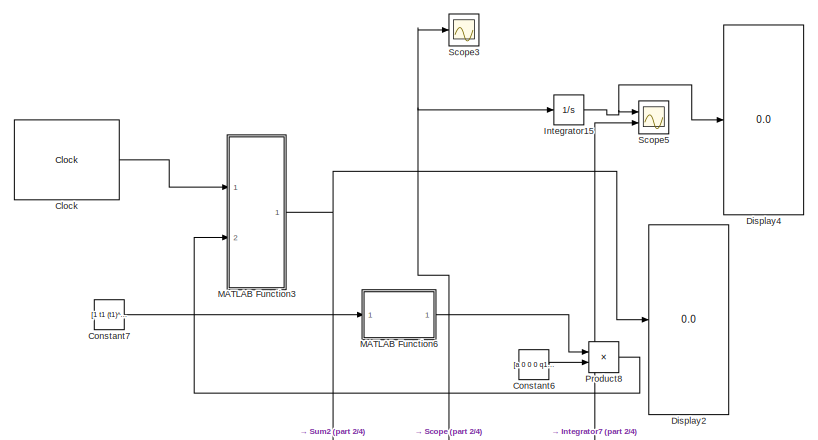
[diagram: root canvas - part 1/4, top right region]
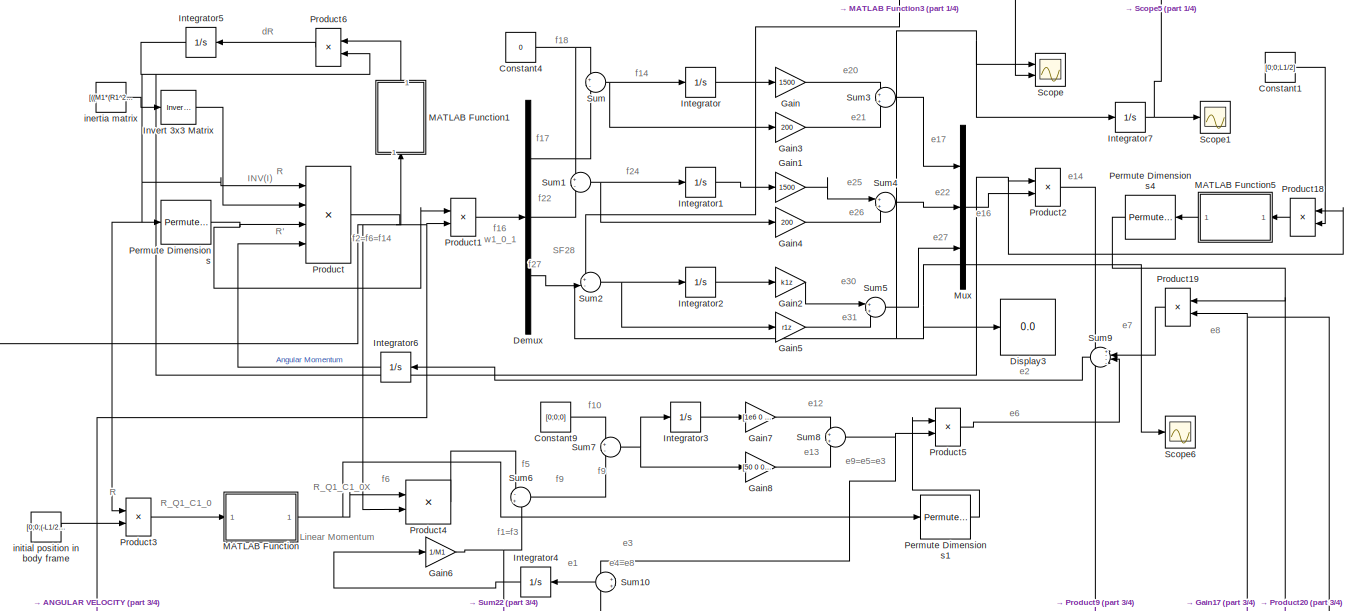
[diagram: root canvas - part 2/4, full width, top band]
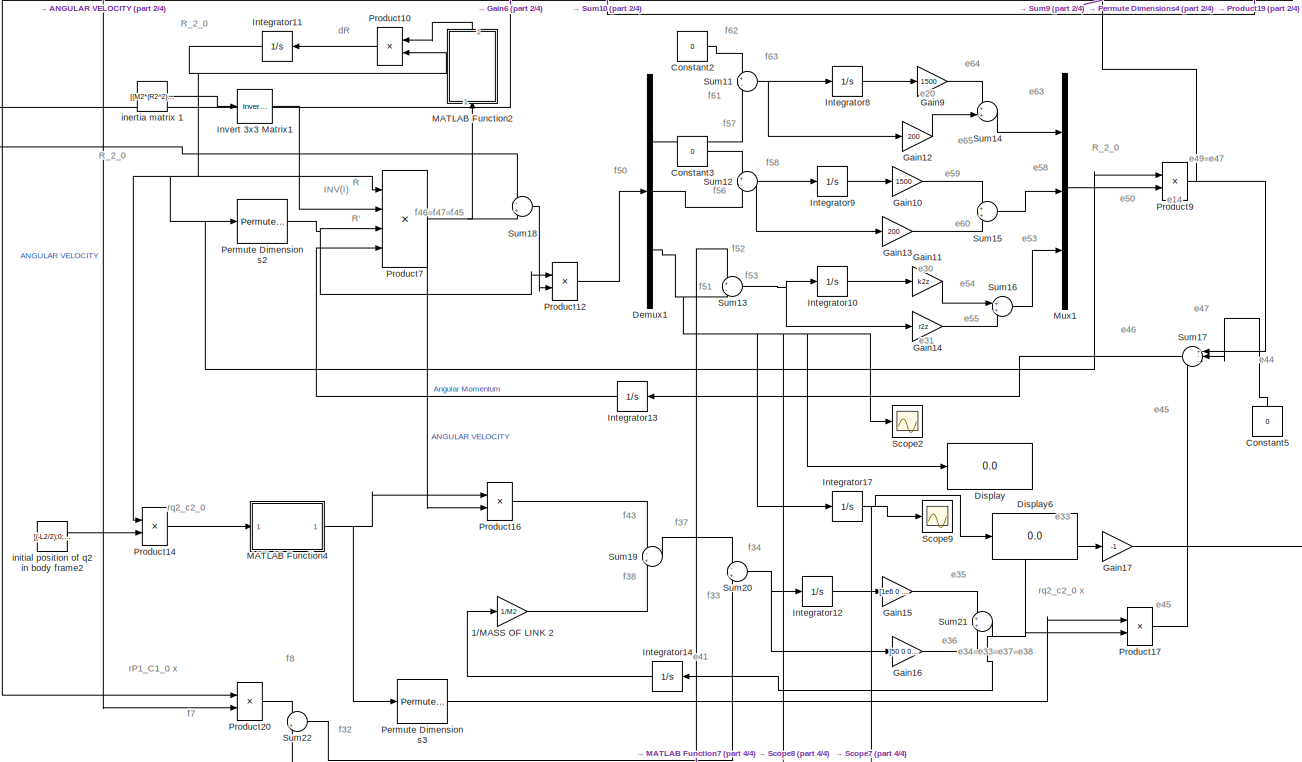
[diagram: root canvas - part 3/4, full width, middle band]
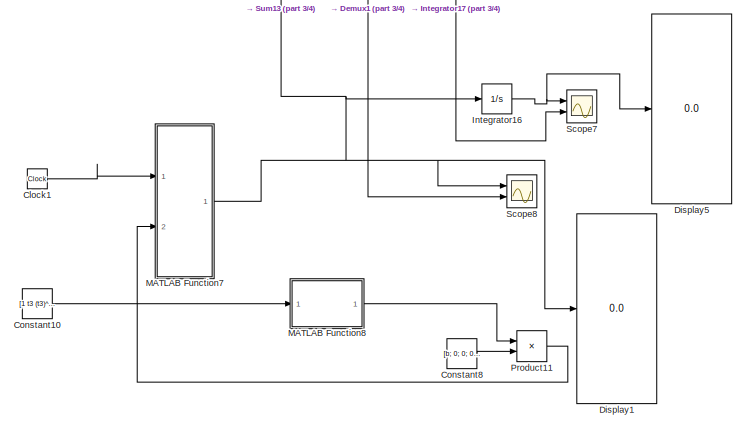
[diagram: root canvas - part 4/4, bottom center region]
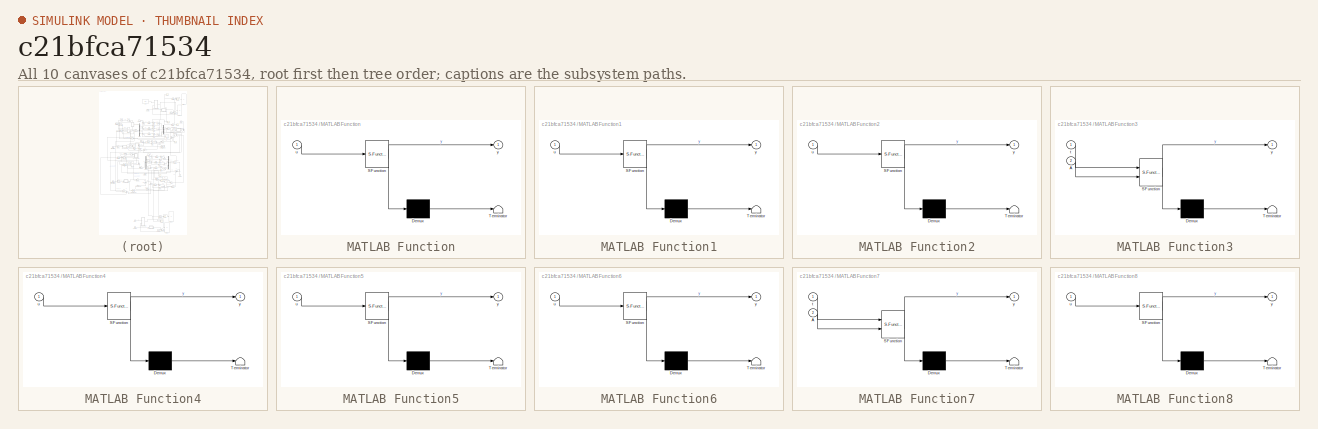
[diagram: thumbnail index - all 10 canvases of the model, root first then tree order]
MODEL slx_c21bfca71534
KIND model
CONFIG AbsTol = auto
CONFIG FixedStep = auto
CONFIG MaxStep = auto
CONFIG MinStep = auto
CONFIG RelTol = 1e-3
CONFIG SampleTimeConstraint = Unconstrained
CONFIG Solver = ode15s
CONFIG SolverMode = SingleTasking
CONFIG SolverName = ode15s
CONFIG StartTime = 0.0
CONFIG StopTime = 8
BLOCK [Gain] 1//MASS OF LINK 2
  Gain = 1/M2
  OutDataTypeStr = Inherit: Inherit via internal rule
  ParamDataTypeStr = Inherit: Inherit via internal rule
  SaturateOnIntegerOverflow = off
BLOCK [Clock] Clock
  Decimation = 2
  DisplayTime = on
BLOCK [Clock] Clock1
  DisplayTime = on
BLOCK [Constant] Constant1
  Value = [0;0;L1/2]
BLOCK [Constant] Constant10
  Value = [1 t3 (t3)^2 (t3)^3 (t3)^4 (t3)^5 (t3)^6 (t3)^7; 0 1 2*(t3) 3*((t3)^2) 4*((t3)^3) 5*((t3)^4) 6*((t3)^5) 7*((t3)^6); 0 0 2 6*(t3) 12*((t3)^2) 20*((t3)^3) 30*((t3)^4) 42*((t3)^5); 0 0 0 6 24*(t3) 60*((t3)^2) 120*((t3)^3) 210*((t3)^4); 1 t4 t4^2 t4^3 t4^4 t4^5 t4^6 t4^7; 0 1 2*t4 3*(t4^2) 4*(t4^3) 5*(t4^4) 6*(t4^5) 7*(t4^6);0 0 2 6*t4 12*(t4^2) 20*(t4^3) 30*(t4^4) 42*(t4^5);0 0 0 6 24*t4 60*(t4^2) 12...<+20ch>
BLOCK [Constant] Constant2
  Value = 0
BLOCK [Constant] Constant3
  Value = 0
BLOCK [Constant] Constant4
  Value = 0
BLOCK [Constant] Constant5
  Value = 0
BLOCK [Constant] Constant6
  Value = [a 0 0 0 q1f 0 0 0]
BLOCK [Constant] Constant7
  Value = [1 t1 (t1)^2 (t1)^3 (t1)^4 (t1)^5 (t1)^6 (t1)^7; 0 1 2*(t1) 3*((t1)^2) 4*((t1)^3) 5*((t1)^4) 6*((t1)^5) 7*((t1)^6); 0 0 2 6*(t1) 12*((t1)^2) 20*((t1)^3) 30*((t1)^4) 42*((t1)^5); 0 0 0 6 24*(t1) 60*((t1)^2) 120*((t1)^3) 210*((t1)^4); 1 t2 t2^2 t2^3 t2^4 t2^5 t2^6 t2^7; 0 1 2*t2 3*(t2^2) 4*(t2^3) 5*(t2^4) 6*(t2^5) 7*(t2^6);0 0 2 6*t2 12*(t2^2) 20*(t2^3) 30*(t2^4) 42*(t2^5);0 0 0 6 24*t2 60*(t2^2) 12...<+20ch>
BLOCK [Constant] Constant8
  Value = [b; 0; 0; 0;qf2 ; 0; 0; 0]
BLOCK [Constant] Constant9
  Value = [0;0;0]
  VectorParams1D = off
BLOCK [Demux] Demux
  DisplayOption = bar
  Outputs = 3
  Ports = [1, 3]
BLOCK [Demux] Demux1
  DisplayOption = bar
  Outputs = 3
  Ports = [1, 3]
BLOCK [Display] Display
  Decimation = 1
  Ports = [1]
BLOCK [Display] Display1
  Decimation = 2
  Ports = [1]
BLOCK [Display] Display2
  Decimation = 1
  Ports = [1]
BLOCK [Display] Display3
  Decimation = 1
  Ports = [1]
BLOCK [Display] Display4
  Decimation = 1
  Ports = [1]
BLOCK [Display] Display5
  Decimation = 1
  Ports = [1]
BLOCK [Display] Display6
  Decimation = 1
  Ports = [1]
BLOCK [Gain] Gain
  Gain = 1500
  OutDataTypeStr = Inherit: Inherit via internal rule
  ParamDataTypeStr = Inherit: Inherit via internal rule
  SaturateOnIntegerOverflow = off
BLOCK [Gain] Gain1
  Gain = 1500
  OutDataTypeStr = Inherit: Inherit via internal rule
  ParamDataTypeStr = Inherit: Inherit via internal rule
  SaturateOnIntegerOverflow = off
BLOCK [Gain] Gain10
  Gain = 1500
  OutDataTypeStr = Inherit: Inherit via internal rule
  ParamDataTypeStr = Inherit: Inherit via internal rule
  SaturateOnIntegerOverflow = off
BLOCK [Gain] Gain11
  Gain = k2z
  OutDataTypeStr = Inherit: Inherit via internal rule
  ParamDataTypeStr = Inherit: Inherit via internal rule
  SaturateOnIntegerOverflow = off
BLOCK [Gain] Gain12
  Gain = 200
  OutDataTypeStr = Inherit: Inherit via internal rule
  ParamDataTypeStr = Inherit: Inherit via internal rule
  SaturateOnIntegerOverflow = off
BLOCK [Gain] Gain13
  Gain = 200
  OutDataTypeStr = Inherit: Inherit via internal rule
  ParamDataTypeStr = Inherit: Inherit via internal rule
  SaturateOnIntegerOverflow = off
BLOCK [Gain] Gain14
  Gain = r2z
  OutDataTypeStr = Inherit: Inherit via internal rule
  ParamDataTypeStr = Inherit: Inherit via internal rule
  SaturateOnIntegerOverflow = off
BLOCK [Gain] Gain15
  Gain = [1e6 0 0;0 1e6 0;0 0 1e6]
  Multiplication = Matrix(K*u)
  OutDataTypeStr = Inherit: Inherit via internal rule
  ParamDataTypeStr = Inherit: Inherit via internal rule
  SaturateOnIntegerOverflow = off
BLOCK [Gain] Gain16
  Gain = [50 0 0;0 50 0;0 0 50]
  Multiplication = Matrix(K*u)
  OutDataTypeStr = Inherit: Inherit via internal rule
  ParamDataTypeStr = Inherit: Inherit via internal rule
  SaturateOnIntegerOverflow = off
BLOCK [Gain] Gain17
  Gain = -1
  OutDataTypeStr = Inherit: Inherit via internal rule
  ParamDataTypeStr = Inherit: Inherit via internal rule
  SaturateOnIntegerOverflow = off
BLOCK [Gain] Gain2
  Gain = k1z
  OutDataTypeStr = Inherit: Inherit via internal rule
  ParamDataTypeStr = Inherit: Inherit via internal rule
  SaturateOnIntegerOverflow = off
BLOCK [Gain] Gain3
  Gain = 200
  OutDataTypeStr = Inherit: Inherit via internal rule
  ParamDataTypeStr = Inherit: Inherit via internal rule
  SaturateOnIntegerOverflow = off
BLOCK [Gain] Gain4
  Gain = 200
  OutDataTypeStr = Inherit: Inherit via internal rule
  ParamDataTypeStr = Inherit: Inherit via internal rule
  SaturateOnIntegerOverflow = off
BLOCK [Gain] Gain5
  Gain = r1z
  OutDataTypeStr = Inherit: Inherit via internal rule
  ParamDataTypeStr = Inherit: Inherit via internal rule
  SaturateOnIntegerOverflow = off
BLOCK [Gain] Gain6
  Gain = 1/M1
  OutDataTypeStr = Inherit: Inherit via internal rule
  ParamDataTypeStr = Inherit: Inherit via internal rule
  SaturateOnIntegerOverflow = off
BLOCK [Gain] Gain7
  Gain = [1e6 0 0;0 1e6 0;0 0 1e6]
  Multiplication = Matrix(K*u)
  OutDataTypeStr = Inherit: Inherit via internal rule
  ParamDataTypeStr = Inherit: Inherit via internal rule
  SaturateOnIntegerOverflow = off
BLOCK [Gain] Gain8
  Gain = [50 0 0;0 50 0;0 0 50]
  Multiplication = Matrix(K*u)
  OutDataTypeStr = Inherit: Inherit via internal rule
  ParamDataTypeStr = Inherit: Inherit via internal rule
  SaturateOnIntegerOverflow = off
BLOCK [Gain] Gain9
  Gain = 1500
  OutDataTypeStr = Inherit: Inherit via internal rule
  ParamDataTypeStr = Inherit: Inherit via internal rule
  SaturateOnIntegerOverflow = off
BLOCK [Integrator] Integrator
  Ports = [1, 1]
BLOCK [Integrator] Integrator1
  Ports = [1, 1]
BLOCK [Integrator] Integrator10
  Ports = [1, 1]
BLOCK [Integrator] Integrator11
  InitialCondition = [cos(a) -sin(a) 0;sin(a) cos(a) 0;0 0 1]*[cos(b) -sin(b) 0;0 0 -1;sin(b) cos(b) 0]
  Ports = [1, 1]
BLOCK [Integrator] Integrator12
  Ports = [1, 1]
BLOCK [Integrator] Integrator13
  InitialCondition = [0;0;0]
  Ports = [1, 1]
BLOCK [Integrator] Integrator14
  InitialCondition = [0;0;0]
  Ports = [1, 1]
BLOCK [Integrator] Integrator15
  Ports = [1, 1]
BLOCK [Integrator] Integrator16
  InitialCondition = -0.3490
  Ports = [1, 1]
BLOCK [Integrator] Integrator17
  InitialCondition = -0.3490
  Ports = [1, 1]
BLOCK [Integrator] Integrator2
  Ports = [1, 1]
BLOCK [Integrator] Integrator3
  Ports = [1, 1]
BLOCK [Integrator] Integrator4
  InitialCondition = [0;0;0]
  Ports = [1, 1]
BLOCK [Integrator] Integrator5
  InitialCondition = [cos(a) -sin(a) 0;sin(a) cos(a) 0;0 0 1]
  Ports = [1, 1]
BLOCK [Integrator] Integrator6
  InitialCondition = [0;0;0]
  Ports = [1, 1]
BLOCK [Integrator] Integrator7
  Ports = [1, 1]
BLOCK [Integrator] Integrator8
  Ports = [1, 1]
BLOCK [Integrator] Integrator9
  Ports = [1, 1]
BLOCK [Reference] Invert 3x3 Matrix  REF=aerolibutil/Invert 
3x3 Matrix
  Ports = [1, 1]
  SourceBlock = aerolibutil/Invert \n3x3 Matrix
  SourceType = Invert 3x3 Matrix
BLOCK [Reference] Invert 3x3 Matrix1  REF=aerolibutil/Invert 
3x3 Matrix
  Ports = [1, 1]
  SourceBlock = aerolibutil/Invert \n3x3 Matrix
  SourceType = Invert 3x3 Matrix
BLOCK [SubSystem] MATLAB Function
  ErrorFcn = Stateflow.Translate.translate
  PermitHierarchicalResolution = ExplicitOnly
  Ports = [1, 1]
  RequestExecContextInheritance = off
  SFBlockType = MATLAB Function
  TreatAsAtomicUnit = on
BLOCK [Demux] MATLAB Function/ Demux 
  Outputs = 1
  Ports = [1, 1]
BLOCK [S-Function] MATLAB Function/ SFunction 
  EnableBusSupport = on
  FunctionName = sf_sfun
  PortCounts = [1 2]
  Ports = [1, 2]
  Tag = Stateflow S-Function modelnew 2
BLOCK [Terminator] MATLAB Function/ Terminator 
BLOCK [Inport] MATLAB Function/u
  IconDisplay = Port number
BLOCK [Outport] MATLAB Function/y
  IconDisplay = Port number
BLOCK [SubSystem] MATLAB Function1
  ErrorFcn = Stateflow.Translate.translate
  PermitHierarchicalResolution = ExplicitOnly
  Ports = [1, 1]
  RequestExecContextInheritance = off
  SFBlockType = MATLAB Function
  TreatAsAtomicUnit = on
BLOCK [Demux] MATLAB Function1/ Demux 
  Outputs = 1
  Ports = [1, 1]
BLOCK [S-Function] MATLAB Function1/ SFunction 
  EnableBusSupport = on
  FunctionName = sf_sfun
  PortCounts = [1 2]
  Ports = [1, 2]
  Tag = Stateflow S-Function modelnew 1
BLOCK [Terminator] MATLAB Function1/ Terminator 
BLOCK [Inport] MATLAB Function1/u
  IconDisplay = Port number
BLOCK [Outport] MATLAB Function1/y
  IconDisplay = Port number
BLOCK [SubSystem] MATLAB Function2
  ErrorFcn = Stateflow.Translate.translate
  PermitHierarchicalResolution = ExplicitOnly
  Ports = [1, 1]
  RequestExecContextInheritance = off
  SFBlockType = MATLAB Function
  TreatAsAtomicUnit = on
BLOCK [Demux] MATLAB Function2/ Demux 
  Outputs = 1
  Ports = [1, 1]
BLOCK [S-Function] MATLAB Function2/ SFunction 
  EnableBusSupport = on
  FunctionName = sf_sfun
  PortCounts = [1 2]
  Ports = [1, 2]
  Tag = Stateflow S-Function modelnew 3
BLOCK [Terminator] MATLAB Function2/ Terminator 
BLOCK [Inport] MATLAB Function2/u
  IconDisplay = Port number
BLOCK [Outport] MATLAB Function2/y
  IconDisplay = Port number
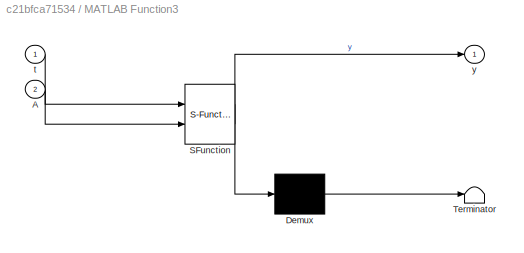
BLOCK [SubSystem] MATLAB Function3
  ErrorFcn = Stateflow.Translate.translate
  PermitHierarchicalResolution = ExplicitOnly
  Ports = [2, 1]
  RequestExecContextInheritance = off
  SFBlockType = MATLAB Function
  TreatAsAtomicUnit = on
BLOCK [Demux] MATLAB Function3/ Demux 
  Outputs = 1
  Ports = [1, 1]
BLOCK [S-Function] MATLAB Function3/ SFunction 
  EnableBusSupport = on
  FunctionName = sf_sfun
  PortCounts = [2 2]
  Ports = [2, 2]
  Tag = Stateflow S-Function modelnew 4
BLOCK [Terminator] MATLAB Function3/ Terminator 
BLOCK [Inport] MATLAB Function3/A
  IconDisplay = Port number
  Port = 2
BLOCK [Inport] MATLAB Function3/t
  IconDisplay = Port number
BLOCK [Outport] MATLAB Function3/y
  IconDisplay = Port number
BLOCK [SubSystem] MATLAB Function4
  ErrorFcn = Stateflow.Translate.translate
  PermitHierarchicalResolution = ExplicitOnly
  Ports = [1, 1]
  RequestExecContextInheritance = off
  SFBlockType = MATLAB Function
  TreatAsAtomicUnit = on
BLOCK [Demux] MATLAB Function4/ Demux 
  Outputs = 1
  Ports = [1, 1]
BLOCK [S-Function] MATLAB Function4/ SFunction 
  EnableBusSupport = on
  FunctionName = sf_sfun
  PortCounts = [1 2]
  Ports = [1, 2]
  Tag = Stateflow S-Function modelnew 5
BLOCK [Terminator] MATLAB Function4/ Terminator 
BLOCK [Inport] MATLAB Function4/u
  IconDisplay = Port number
BLOCK [Outport] MATLAB Function4/y
  IconDisplay = Port number
BLOCK [SubSystem] MATLAB Function5
  ErrorFcn = Stateflow.Translate.translate
  PermitHierarchicalResolution = ExplicitOnly
  Ports = [1, 1]
  RequestExecContextInheritance = off
  SFBlockType = MATLAB Function
  TreatAsAtomicUnit = on
BLOCK [Demux] MATLAB Function5/ Demux 
  Outputs = 1
  Ports = [1, 1]
BLOCK [S-Function] MATLAB Function5/ SFunction 
  EnableBusSupport = on
  FunctionName = sf_sfun
  PortCounts = [1 2]
  Ports = [1, 2]
  Tag = Stateflow S-Function modelnew 6
BLOCK [Terminator] MATLAB Function5/ Terminator 
BLOCK [Inport] MATLAB Function5/u
  IconDisplay = Port number
BLOCK [Outport] MATLAB Function5/y
  IconDisplay = Port number
BLOCK [SubSystem] MATLAB Function6
  ErrorFcn = Stateflow.Translate.translate
  PermitHierarchicalResolution = ExplicitOnly
  Ports = [1, 1]
  RequestExecContextInheritance = off
  SFBlockType = MATLAB Function
  TreatAsAtomicUnit = on
BLOCK [Demux] MATLAB Function6/ Demux 
  Outputs = 1
  Ports = [1, 1]
BLOCK [S-Function] MATLAB Function6/ SFunction 
  EnableBusSupport = on
  FunctionName = sf_sfun
  PortCounts = [1 2]
  Ports = [1, 2]
  Tag = Stateflow S-Function modelnew 7
BLOCK [Terminator] MATLAB Function6/ Terminator 
BLOCK [Inport] MATLAB Function6/u
  IconDisplay = Port number
BLOCK [Outport] MATLAB Function6/y
  IconDisplay = Port number
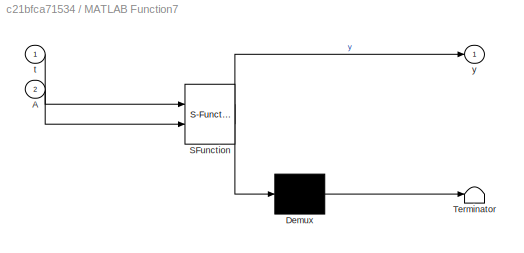
BLOCK [SubSystem] MATLAB Function7
  ErrorFcn = Stateflow.Translate.translate
  PermitHierarchicalResolution = ExplicitOnly
  Ports = [2, 1]
  RequestExecContextInheritance = off
  SFBlockType = MATLAB Function
  TreatAsAtomicUnit = on
BLOCK [Demux] MATLAB Function7/ Demux 
  Outputs = 1
  Ports = [1, 1]
BLOCK [S-Function] MATLAB Function7/ SFunction 
  EnableBusSupport = on
  FunctionName = sf_sfun
  PortCounts = [2 2]
  Ports = [2, 2]
  Tag = Stateflow S-Function modelnew 8
BLOCK [Terminator] MATLAB Function7/ Terminator 
BLOCK [Inport] MATLAB Function7/A
  IconDisplay = Port number
  Port = 2
BLOCK [Inport] MATLAB Function7/t
  IconDisplay = Port number
BLOCK [Outport] MATLAB Function7/y
  IconDisplay = Port number
BLOCK [SubSystem] MATLAB Function8
  ErrorFcn = Stateflow.Translate.translate
  PermitHierarchicalResolution = ExplicitOnly
  Ports = [1, 1]
  RequestExecContextInheritance = off
  SFBlockType = MATLAB Function
  TreatAsAtomicUnit = on
BLOCK [Demux] MATLAB Function8/ Demux 
  Outputs = 1
  Ports = [1, 1]
BLOCK [S-Function] MATLAB Function8/ SFunction 
  EnableBusSupport = on
  FunctionName = sf_sfun
  PortCounts = [1 2]
  Ports = [1, 2]
  Tag = Stateflow S-Function modelnew 9
BLOCK [Terminator] MATLAB Function8/ Terminator 
BLOCK [Inport] MATLAB Function8/u
  IconDisplay = Port number
BLOCK [Outport] MATLAB Function8/y
  IconDisplay = Port number
BLOCK [Mux] Mux
  DisplayOption = bar
  Inputs = 3
  Ports = [3, 1]
BLOCK [Mux] Mux1
  DisplayOption = bar
  Inputs = 3
  Ports = [3, 1]
BLOCK [PermuteDimensions] Permute Dimensions
BLOCK [PermuteDimensions] Permute Dimensions1
BLOCK [PermuteDimensions] Permute Dimensions2
BLOCK [PermuteDimensions] Permute Dimensions3
BLOCK [PermuteDimensions] Permute Dimensions4
BLOCK [Product] Product
  InputSameDT = off
  Inputs = 4
  Multiplication = Matrix(*)
  OutDataTypeStr = Inherit: Inherit via internal rule
  Ports = [4, 1]
  RndMeth = Floor
  SaturateOnIntegerOverflow = off
BLOCK [Product] Product1
  InputSameDT = off
  Multiplication = Matrix(*)
  OutDataTypeStr = Inherit: Inherit via internal rule
  Ports = [2, 1]
  RndMeth = Floor
  SaturateOnIntegerOverflow = off
BLOCK [Product] Product10
  InputSameDT = off
  Multiplication = Matrix(*)
  OutDataTypeStr = Inherit: Inherit via internal rule
  Ports = [2, 1]
  RndMeth = Floor
  SaturateOnIntegerOverflow = off
BLOCK [Product] Product11
  InputSameDT = off
  Multiplication = Matrix(*)
  OutDataTypeStr = Inherit: Inherit via internal rule
  Ports = [2, 1]
  RndMeth = Floor
  SaturateOnIntegerOverflow = off
BLOCK [Product] Product12
  InputSameDT = off
  Multiplication = Matrix(*)
  OutDataTypeStr = Inherit: Inherit via internal rule
  Ports = [2, 1]
  RndMeth = Floor
  SaturateOnIntegerOverflow = off
BLOCK [Product] Product14
  InputSameDT = off
  Multiplication = Matrix(*)
  OutDataTypeStr = Inherit: Inherit via internal rule
  Ports = [2, 1]
  RndMeth = Floor
  SaturateOnIntegerOverflow = off
BLOCK [Product] Product16
  InputSameDT = off
  Multiplication = Matrix(*)
  OutDataTypeStr = Inherit: Inherit via internal rule
  Ports = [2, 1]
  RndMeth = Floor
  SaturateOnIntegerOverflow = off
BLOCK [Product] Product17
  InputSameDT = off
  Multiplication = Matrix(*)
  OutDataTypeStr = Inherit: Inherit via internal rule
  Ports = [2, 1]
  RndMeth = Floor
  SaturateOnIntegerOverflow = off
BLOCK [Product] Product18
  InputSameDT = off
  Multiplication = Matrix(*)
  OutDataTypeStr = Inherit: Inherit via internal rule
  Ports = [2, 1]
  RndMeth = Floor
  SaturateOnIntegerOverflow = off
BLOCK [Product] Product19
  InputSameDT = off
  Multiplication = Matrix(*)
  OutDataTypeStr = Inherit: Inherit via internal rule
  Ports = [2, 1]
  RndMeth = Floor
  SaturateOnIntegerOverflow = off
BLOCK [Product] Product2
  InputSameDT = off
  Multiplication = Matrix(*)
  OutDataTypeStr = Inherit: Inherit via internal rule
  Ports = [2, 1]
  RndMeth = Floor
  SaturateOnIntegerOverflow = off
BLOCK [Product] Product20
  InputSameDT = off
  Multiplication = Matrix(*)
  OutDataTypeStr = Inherit: Inherit via internal rule
  Ports = [2, 1]
  RndMeth = Floor
  SaturateOnIntegerOverflow = off
BLOCK [Product] Product3
  InputSameDT = off
  Multiplication = Matrix(*)
  OutDataTypeStr = Inherit: Inherit via internal rule
  Ports = [2, 1]
  RndMeth = Floor
  SaturateOnIntegerOverflow = off
BLOCK [Product] Product4
  InputSameDT = off
  Multiplication = Matrix(*)
  OutDataTypeStr = Inherit: Inherit via internal rule
  Ports = [2, 1]
  RndMeth = Floor
  SaturateOnIntegerOverflow = off
BLOCK [Product] Product5
  InputSameDT = off
  Multiplication = Matrix(*)
  OutDataTypeStr = Inherit: Inherit via internal rule
  Ports = [2, 1]
  RndMeth = Floor
  SaturateOnIntegerOverflow = off
BLOCK [Product] Product6
  InputSameDT = off
  Multiplication = Matrix(*)
  OutDataTypeStr = Inherit: Inherit via internal rule
  Ports = [2, 1]
  RndMeth = Floor
  SaturateOnIntegerOverflow = off
BLOCK [Product] Product7
  InputSameDT = off
  Inputs = 4
  Multiplication = Matrix(*)
  OutDataTypeStr = Inherit: Inherit via internal rule
  Ports = [4, 1]
  RndMeth = Floor
  SaturateOnIntegerOverflow = off
BLOCK [Product] Product8
  InputSameDT = off
  Multiplication = Matrix(*)
  OutDataTypeStr = Inherit: Inherit via internal rule
  Ports = [2, 1]
  RndMeth = Floor
  SaturateOnIntegerOverflow = off
BLOCK [Product] Product9
  InputSameDT = off
  Multiplication = Matrix(*)
  OutDataTypeStr = Inherit: Inherit via internal rule
  Ports = [2, 1]
  RndMeth = Floor
  SaturateOnIntegerOverflow = off
BLOCK [Scope] Scope
  Floating = off
  NumInputPorts = 2
  Ports = [2]
  SaveName = ScopeData2
  YMax = 225~5
  YMin = -125~-5
BLOCK [Scope] Scope1
  Floating = off
  NumInputPorts = 1
  Ports = [1]
  SaveName = ScopeData1
  YMax = 0.226
  YMin = 0.205
BLOCK [Scope] Scope2
  Floating = off
  NumInputPorts = 1
  Ports = [1]
  SaveName = ScopeData3
  YMax = 80
  YMin = -90
BLOCK [Scope] Scope3
  Floating = off
  NumInputPorts = 1
  Ports = [1]
  YMax = 0.1675
  YMin = 0.162
BLOCK [Scope] Scope5
  Floating = off
  NumInputPorts = 2
  Ports = [2]
  SaveName = ScopeData5
  TimeRange = 5
  YMax = 5~5
  YMin = -5~-5
BLOCK [Scope] Scope6
  Floating = off
  NumInputPorts = 1
  Ports = [1]
  SaveName = ScopeData6
  TimeRange = 0.3076710970924061
  YMax = -700
  YMin = -950
BLOCK [Scope] Scope7
  Floating = off
  NumInputPorts = 2
  Ports = [2]
  SaveName = ScopeData7
  YMax = 5~5
  YMin = -5~-5
BLOCK [Scope] Scope8
  Floating = off
  NumInputPorts = 2
  Ports = [2]
  SaveName = ScopeData8
  YMax = 5~5
  YMin = -5~-5
BLOCK [Scope] Scope9
  Floating = off
  NumInputPorts = 1
  Ports = [1]
  SaveName = ScopeData9
  YMax = 80
  YMin = -90
BLOCK [Sum] Sum
  IconShape = round
  InputSameDT = off
  Inputs = +-
  OutDataTypeStr = Inherit: Inherit via internal rule
  Ports = [2, 1]
  SaturateOnIntegerOverflow = off
BLOCK [Sum] Sum1
  IconShape = round
  InputSameDT = off
  Inputs = +-
  OutDataTypeStr = Inherit: Inherit via internal rule
  Ports = [2, 1]
  SaturateOnIntegerOverflow = off
BLOCK [Sum] Sum10
  IconShape = round
  InputSameDT = off
  OutDataTypeStr = Inherit: Inherit via internal rule
  Ports = [2, 1]
  SaturateOnIntegerOverflow = off
BLOCK [Sum] Sum11
  IconShape = round
  InputSameDT = off
  Inputs = +-
  OutDataTypeStr = Inherit: Inherit via internal rule
  Ports = [2, 1]
  SaturateOnIntegerOverflow = off
BLOCK [Sum] Sum12
  IconShape = round
  InputSameDT = off
  Inputs = +-
  OutDataTypeStr = Inherit: Inherit via internal rule
  Ports = [2, 1]
  SaturateOnIntegerOverflow = off
BLOCK [Sum] Sum13
  IconShape = round
  InputSameDT = off
  Inputs = +-
  OutDataTypeStr = Inherit: Inherit via internal rule
  Ports = [2, 1]
  SaturateOnIntegerOverflow = off
BLOCK [Sum] Sum14
  IconShape = round
  InputSameDT = off
  OutDataTypeStr = Inherit: Inherit via internal rule
  Ports = [2, 1]
  SaturateOnIntegerOverflow = off
BLOCK [Sum] Sum15
  IconShape = round
  InputSameDT = off
  OutDataTypeStr = Inherit: Inherit via internal rule
  Ports = [2, 1]
  SaturateOnIntegerOverflow = off
BLOCK [Sum] Sum16
  IconShape = round
  InputSameDT = off
  OutDataTypeStr = Inherit: Inherit via internal rule
  Ports = [2, 1]
  SaturateOnIntegerOverflow = off
BLOCK [Sum] Sum17
  IconShape = round
  InputSameDT = off
  Inputs = +--
  OutDataTypeStr = Inherit: Inherit via internal rule
  Ports = [3, 1]
  SaturateOnIntegerOverflow = off
BLOCK [Sum] Sum18
  IconShape = round
  InputSameDT = off
  Inputs = -+
  OutDataTypeStr = Inherit: Inherit via internal rule
  Ports = [2, 1]
  SaturateOnIntegerOverflow = off
BLOCK [Sum] Sum19
  IconShape = round
  InputSameDT = off
  Inputs = -+
  OutDataTypeStr = Inherit: Inherit via internal rule
  Ports = [2, 1]
  SaturateOnIntegerOverflow = off
BLOCK [Sum] Sum2
  IconShape = round
  InputSameDT = off
  Inputs = +-
  OutDataTypeStr = Inherit: Inherit via internal rule
  Ports = [2, 1]
  SaturateOnIntegerOverflow = off
BLOCK [Sum] Sum20
  IconShape = round
  InputSameDT = off
  Inputs = -+
  OutDataTypeStr = Inherit: Inherit via internal rule
  Ports = [2, 1]
  SaturateOnIntegerOverflow = off
BLOCK [Sum] Sum21
  IconShape = round
  InputSameDT = off
  OutDataTypeStr = Inherit: Inherit via internal rule
  Ports = [2, 1]
  SaturateOnIntegerOverflow = off
BLOCK [Sum] Sum22
  IconShape = round
  InputSameDT = off
  Inputs = -+
  OutDataTypeStr = Inherit: Inherit via internal rule
  Ports = [2, 1]
  SaturateOnIntegerOverflow = off
BLOCK [Sum] Sum3
  IconShape = round
  InputSameDT = off
  OutDataTypeStr = Inherit: Inherit via internal rule
  Ports = [2, 1]
  SaturateOnIntegerOverflow = off
BLOCK [Sum] Sum4
  IconShape = round
  InputSameDT = off
  OutDataTypeStr = Inherit: Inherit via internal rule
  Ports = [2, 1]
  SaturateOnIntegerOverflow = off
BLOCK [Sum] Sum5
  IconShape = round
  InputSameDT = off
  OutDataTypeStr = Inherit: Inherit via internal rule
  Ports = [2, 1]
  SaturateOnIntegerOverflow = off
BLOCK [Sum] Sum6
  IconShape = round
  InputSameDT = off
  Inputs = -+
  OutDataTypeStr = Inherit: Inherit via internal rule
  Ports = [2, 1]
  SaturateOnIntegerOverflow = off
BLOCK [Sum] Sum7
  IconShape = round
  InputSameDT = off
  Inputs = +-
  OutDataTypeStr = Inherit: Inherit via internal rule
  Ports = [2, 1]
  SaturateOnIntegerOverflow = off
BLOCK [Sum] Sum8
  IconShape = round
  InputSameDT = off
  OutDataTypeStr = Inherit: Inherit via internal rule
  Ports = [2, 1]
  SaturateOnIntegerOverflow = off
BLOCK [Sum] Sum9
  IconShape = round
  InputSameDT = off
  Inputs = +---
  OutDataTypeStr = Inherit: Inherit via internal rule
  Ports = [4, 1]
  SaturateOnIntegerOverflow = off
BLOCK [Constant] inertia matrix 
  Value = [((M1*(R1^2))/2)+((M1*(L1^2))/12) 0 0;0 ((M1*(R1^2))/2)+((M1*(L1^2))/12) 0;0 0 ((M1*(R1^2))/2)]
  VectorParams1D = off
BLOCK [Constant] inertia matrix 1
  Value = [(M2*(R2^2))/2 0 0;0 ((M2*(R2^2))/2)+((M2*(L2^2))/12) 0;0 0 ((M2*(R2^2))/2)+((M2*(L2^2))/12)]
  VectorParams1D = off
BLOCK [Constant] initial position in body frame
  Value = [0;0;(-L1/2)]
BLOCK [Constant] initial position of q2 in body frame2
  Value = [(-L2/2);0;0]
ANNOTATION (root): e33
ANNOTATION (root): e34=e33=e37=e38
ANNOTATION (root): e3
ANNOTATION (root): e41
ANNOTATION (root): e45
ANNOTATION (root): e46
ANNOTATION (root): e47
ANNOTATION (root): e49=e47
ANNOTATION (root): e4=e8
ANNOTATION (root): e50
ANNOTATION (root): e53
ANNOTATION (root): e58
ANNOTATION (root): e63
ANNOTATION (root): f37
ANNOTATION (root): f43
ANNOTATION (root): f50
ANNOTATION (root): f51
ANNOTATION (root): f52
ANNOTATION (root): f53
ANNOTATION (root): f56
ANNOTATION (root): f57
ANNOTATION (root): f58
ANNOTATION (root): f61
ANNOTATION (root): f62
ANNOTATION (root): f63
ANNOTATION (root): rq2_c2_0 x
ANNOTATION (root): e1
ANNOTATION (root): e35
ANNOTATION (root): e36
ANNOTATION (root): e44
ANNOTATION (root): e7
ANNOTATION (root): f32
ANNOTATION (root): f33
ANNOTATION (root): f34
ANNOTATION (root): f38
ANNOTATION (root): f7
ANNOTATION (root): f8
ANNOTATION (root): rP1_C1_0 x
ANNOTATION (root): R_2_0
ANNOTATION (root): e54
ANNOTATION (root): e55
ANNOTATION (root): e59
ANNOTATION (root): e60
ANNOTATION (root): e64
ANNOTATION (root): e65
ANNOTATION (root): e8
ANNOTATION (root): f46=f47=f45
ANNOTATION (root): f6
ANNOTATION (root): rq2_c2_0
ANNOTATION (root): INV(I)
ANNOTATION (root): Linear Momentum
ANNOTATION (root): R
ANNOTATION (root): R'
ANNOTATION (root): R_Q1_C1_0
ANNOTATION (root): R_Q1_C1_0X
ANNOTATION (root): SF28
ANNOTATION (root): dR
ANNOTATION (root): e12
ANNOTATION (root): e13
ANNOTATION (root): e14
ANNOTATION (root): e16
ANNOTATION (root): e17
ANNOTATION (root): e2
ANNOTATION (root): e20
ANNOTATION (root): e21
ANNOTATION (root): e22
ANNOTATION (root): e25
ANNOTATION (root): e26
ANNOTATION (root): e27
ANNOTATION (root): e30
ANNOTATION (root): e31
ANNOTATION (root): e6
ANNOTATION (root): e9=e5=e3
ANNOTATION (root): f10
ANNOTATION (root): f14
ANNOTATION (root): f16 w1_0_1
ANNOTATION (root): f17
ANNOTATION (root): f18
ANNOTATION (root): f1=f3
ANNOTATION (root): f22
ANNOTATION (root): f24
ANNOTATION (root): f27
ANNOTATION (root): f2=f6=f14
ANNOTATION (root): f5
ANNOTATION (root): f9
LINE 1//MASS OF LINK 2:1 -> Sum19:2
LINE Clock1:1 -> MATLAB Function7:1
LINE Clock:1 -> MATLAB Function3:1
LINE Constant10:1 -> MATLAB Function8:1
LINE Constant1:1 -> Product18:2
LINE Constant2:1 -> Sum11:1
LINE Constant3:1 -> Sum12:1
NET Constant4:1 -> Sum1:1, Sum:1
LINE Constant5:1 -> Sum17:2
LINE Constant6:1 -> Product8:2
LINE Constant7:1 -> MATLAB Function6:1
LINE Constant8:1 -> Product11:2
LINE Constant9:1 -> Sum7:1
LINE Demux1:1 -> Sum11:2
LINE Demux1:2 -> Sum12:2
NET Demux1:3 -> Display:1, Integrator17:1, Scope2:1, Scope8:2, Sum13:2
LINE Demux:1 -> Sum:2
LINE Demux:2 -> Sum1:2
NET Demux:3 -> Display3:1, Integrator7:1, Scope6:1, Scope:1, Sum2:2
LINE Gain10:1 -> Sum15:1
LINE Gain11:1 -> Sum16:1
LINE Gain12:1 -> Sum14:2
LINE Gain13:1 -> Sum15:2
LINE Gain14:1 -> Sum16:2
LINE Gain15:1 -> Sum21:1
LINE Gain16:1 -> Sum21:2
NET Gain17:1 -> Product19:2, Sum10:2
LINE Gain1:1 -> Sum4:1
LINE Gain2:1 -> Sum5:1
LINE Gain3:1 -> Sum3:2
LINE Gain4:1 -> Sum4:2
LINE Gain5:1 -> Sum5:2
NET Gain6:1 -> Sum22:2, Sum6:2
LINE Gain7:1 -> Sum8:1
LINE Gain8:1 -> Sum8:2
LINE Gain9:1 -> Sum14:1
LINE Gain:1 -> Sum3:1
LINE Integrator10:1 -> Gain11:1
NET Integrator11:1 -> Permute Dimensions2:1, Product10:2, Product14:1, Product7:1, Product9:1
LINE Integrator12:1 -> Gain15:1
LINE Integrator13:1 -> Product7:4
LINE Integrator14:1 -> 1//MASS OF LINK 2:1
NET Integrator15:1 -> Display4:1, Scope5:1
NET Integrator16:1 -> Display5:1, Scope7:1
NET Integrator17:1 -> Display6:1, Scope7:2, Scope9:1
LINE Integrator1:1 -> Gain1:1
LINE Integrator2:1 -> Gain2:1
LINE Integrator3:1 -> Gain7:1
LINE Integrator4:1 -> Gain6:1
NET Integrator5:1 -> Permute Dimensions:1, Product18:1, Product2:1, Product3:1, Product6:2, Product:1
LINE Integrator6:1 -> Product:4
NET Integrator7:1 -> Scope1:1, Scope5:2
LINE Integrator8:1 -> Gain9:1
LINE Integrator9:1 -> Gain10:1
LINE Integrator:1 -> Gain:1
LINE Invert 3x3 Matrix1:1 -> Product7:2
LINE Invert 3x3 Matrix:1 -> Product:2
LINE MATLAB Function1:1 -> Product6:1
LINE MATLAB Function2:1 -> Product10:1
NET MATLAB Function3:1 -> Display2:1, Integrator15:1, Scope3:1, Scope:2, Sum2:1
NET MATLAB Function4:1 -> Permute Dimensions3:1, Product16:1
LINE MATLAB Function5:1 -> Permute Dimensions4:1
LINE MATLAB Function6:1 -> Product8:1
NET MATLAB Function7:1 -> Display1:1, Integrator16:1, Scope8:1, Sum13:1
LINE MATLAB Function8:1 -> Product11:1
NET MATLAB Function:1 -> Permute Dimensions1:1, Product4:1
LINE Mux1:1 -> Product9:2
LINE Mux:1 -> Product2:2
LINE Permute Dimensions1:1 -> Product5:1
NET Permute Dimensions2:1 -> Product12:1, Product7:3
LINE Permute Dimensions3:1 -> Product17:1
NET Permute Dimensions4:1 -> Product19:1, Product20:1
NET Permute Dimensions:1 -> Product1:1, Product:3
LINE Product10:1 -> Integrator11:1
LINE Product11:1 -> MATLAB Function7:2
LINE Product12:1 -> Demux1:1
LINE Product14:1 -> MATLAB Function4:1
LINE Product16:1 -> Sum19:1
LINE Product17:1 -> Sum17:3
LINE Product18:1 -> MATLAB Function5:1
LINE Product19:1 -> Sum9:2
LINE Product1:1 -> Demux:1
LINE Product20:1 -> Sum22:1
LINE Product2:1 -> Sum9:1
LINE Product3:1 -> MATLAB Function:1
LINE Product4:1 -> Sum6:1
LINE Product5:1 -> Sum9:3
LINE Product6:1 -> Integrator5:1
NET Product7:1 -> MATLAB Function2:1, Product16:2, Sum18:2
LINE Product8:1 -> MATLAB Function3:2
NET Product9:1 -> Sum17:1, Sum9:4
NET Product:1 -> MATLAB Function1:1, Product1:2, Product20:2, Product4:2, Sum18:1
LINE Sum10:1 -> Integrator4:1
NET Sum11:1 -> Gain12:1, Integrator8:1
NET Sum12:1 -> Gain13:1, Integrator9:1
NET Sum13:1 -> Gain14:1, Integrator10:1
LINE Sum14:1 -> Mux1:1
LINE Sum15:1 -> Mux1:2
LINE Sum16:1 -> Mux1:3
LINE Sum17:1 -> Integrator13:1
LINE Sum18:1 -> Product12:2
LINE Sum19:1 -> Sum20:1
NET Sum1:1 -> Gain4:1, Integrator1:1
NET Sum20:1 -> Gain16:1, Integrator12:1
NET Sum21:1 -> Gain17:1, Integrator14:1, Product17:2
LINE Sum22:1 -> Sum20:2
NET Sum2:1 -> Gain5:1, Integrator2:1
LINE Sum3:1 -> Mux:1
LINE Sum4:1 -> Mux:2
LINE Sum5:1 -> Mux:3
LINE Sum6:1 -> Sum7:2
NET Sum7:1 -> Gain8:1, Integrator3:1
NET Sum8:1 -> Product5:2, Sum10:1
LINE Sum9:1 -> Integrator6:1
NET Sum:1 -> Gain3:1, Integrator:1
LINE inertia matrix 1:1 -> Invert 3x3 Matrix1:1
LINE inertia matrix :1 -> Invert 3x3 Matrix:1
LINE initial position in body frame:1 -> Product3:2
LINE initial position of q2 in body frame2:1 -> Product14:2
note: NET lines group one-source signal fan-out (src -> all destinations, sorted); 1:1 wires keep LINE
CHART MATLAB Function1 states=1 transitions=1
  STATE_LABEL 'eML_blk_kernel()'
  STATE_LABEL 'SCRIPT:\nfunction y = fcn(u)\n%#codegen\n\ny = [0 -u(3) u(2);u(3) 0 -u(1); -u(2) u(1) 0];'
CHART MATLAB Function states=1 transitions=1
  STATE_LABEL 'eML_blk_kernel()'
  STATE_LABEL 'SCRIPT:\nfunction y = fcn(u)\n%#codegen\n\ny = [0 -u(3) u(2);u(3) 0 -u(1); -u(2) u(1) 0];'
CHART MATLAB Function2 states=1 transitions=1
  STATE_LABEL 'eML_blk_kernel()'
  STATE_LABEL 'SCRIPT:\nfunction y = fcn(u)\n%#codegen\n\ny = [0 -u(3) u(2);u(3) 0 -u(1); -u(2) u(1) 0];'
CHART MATLAB Function3 states=1 transitions=1
  STATE_LABEL 'eML_blk_kernel()'
  STATE_LABEL 'SCRIPT:\nfunction y = fcn(t,A)\n%#codegen\n\ny=A(2,1)+ 2*A(3,1)*t+ 3*A(4,1)*t^2 + 4*A(5,1)*t^3 + 5*A(6,1)*t^4 + 6*A(7,1)*t^5 + 7*A(8,1)*t^6;\n'
CHART MATLAB Function4 states=1 transitions=1
  STATE_LABEL 'eML_blk_kernel()'
  STATE_LABEL 'SCRIPT:\nfunction y = fcn(u)\n%#codegen\n\ny = [0 -u(3) u(2);u(3) 0 -u(1); -u(2) u(1) 0];'
CHART MATLAB Function5 states=1 transitions=1
  STATE_LABEL 'eML_blk_kernel()'
  STATE_LABEL 'SCRIPT:\nfunction y = fcn(u)\n%#codegen\n\ny = [0 -u(3) u(2);u(3) 0 -u(1); -u(2) u(1) 0];'
CHART MATLAB Function6 states=1 transitions=1
  STATE_LABEL 'eML_blk_kernel()'
  STATE_LABEL 'SCRIPT:\nfunction y = fcn(u)\n%#codegen\n\ny = inv(u);'
CHART MATLAB Function7 states=1 transitions=1
  STATE_LABEL 'eML_blk_kernel()'
  STATE_LABEL 'SCRIPT:\nfunction y = fcn(t,A)\n%#codegen\n\ny=A(2,1)+ 2*A(3,1)*t+ 3*A(4,1)*t^2 + 4*A(5,1)*t^3 + 5*A(6,1)*t^4 + 6*A(7,1)*t^5 + 7*A(8,1)*t^6;\n'
CHART MATLAB Function8 states=1 transitions=1
  STATE_LABEL 'eML_blk_kernel()'
  STATE_LABEL 'SCRIPT:\nfunction y = fcn(u)\n%#codegen\n\ny = inv(u);'
